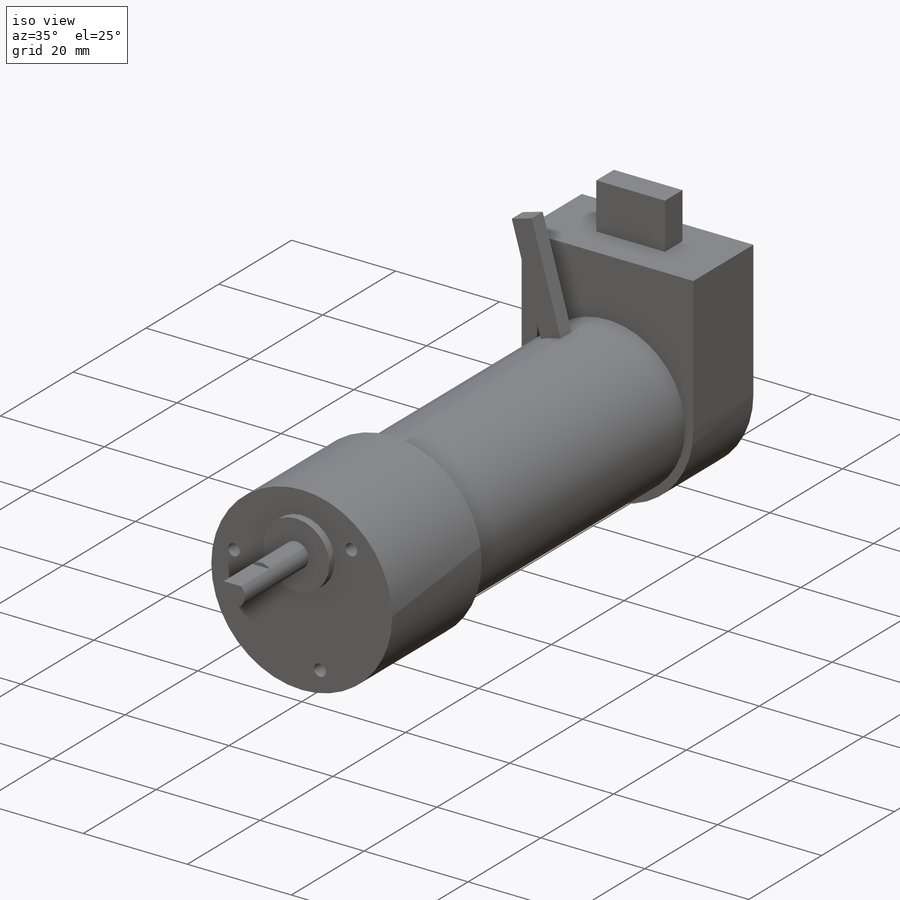
[diagram: iso view]
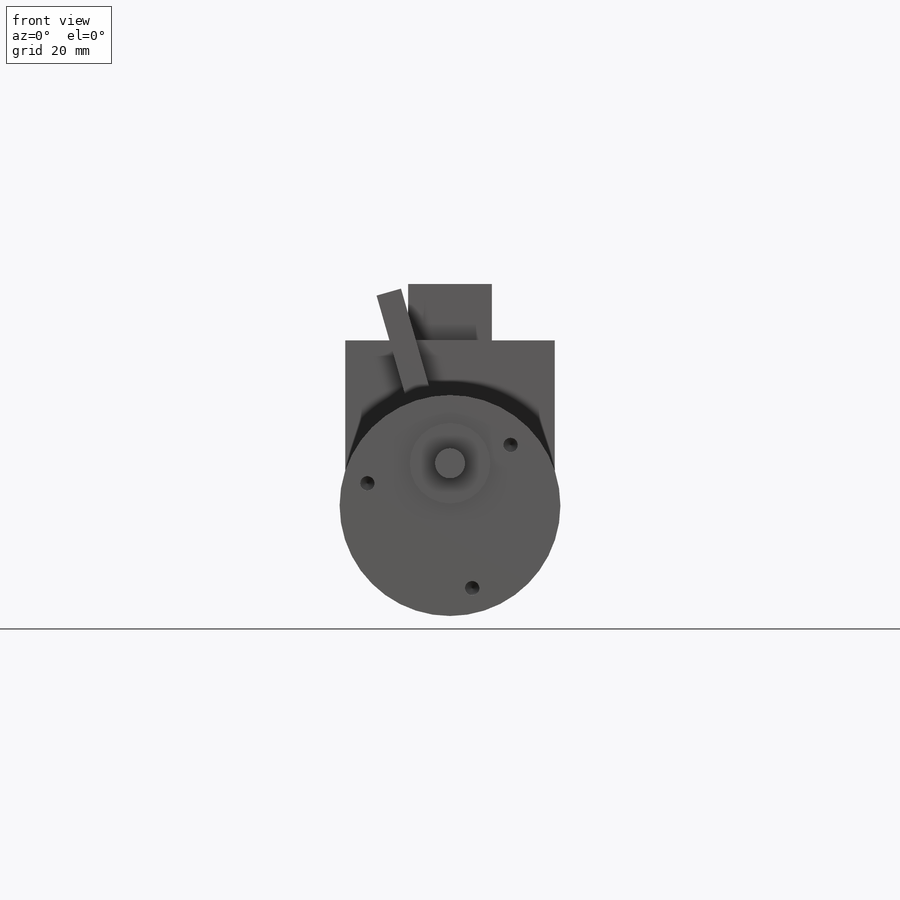
[diagram: front view]
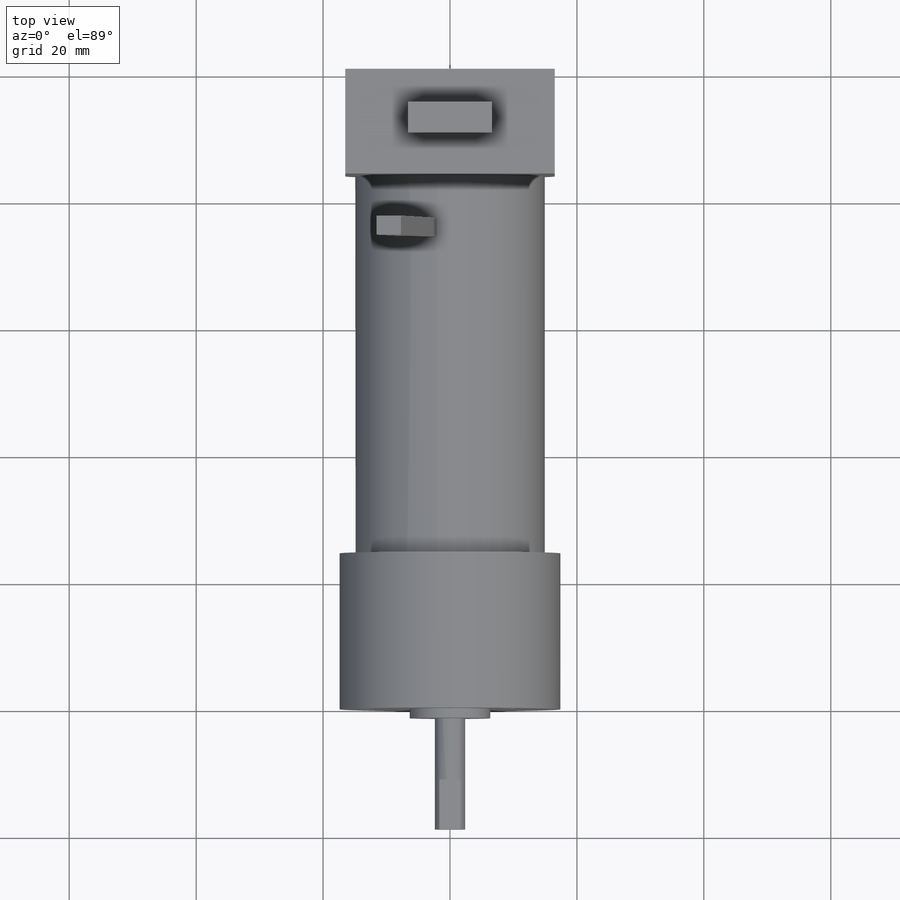
[diagram: top view]
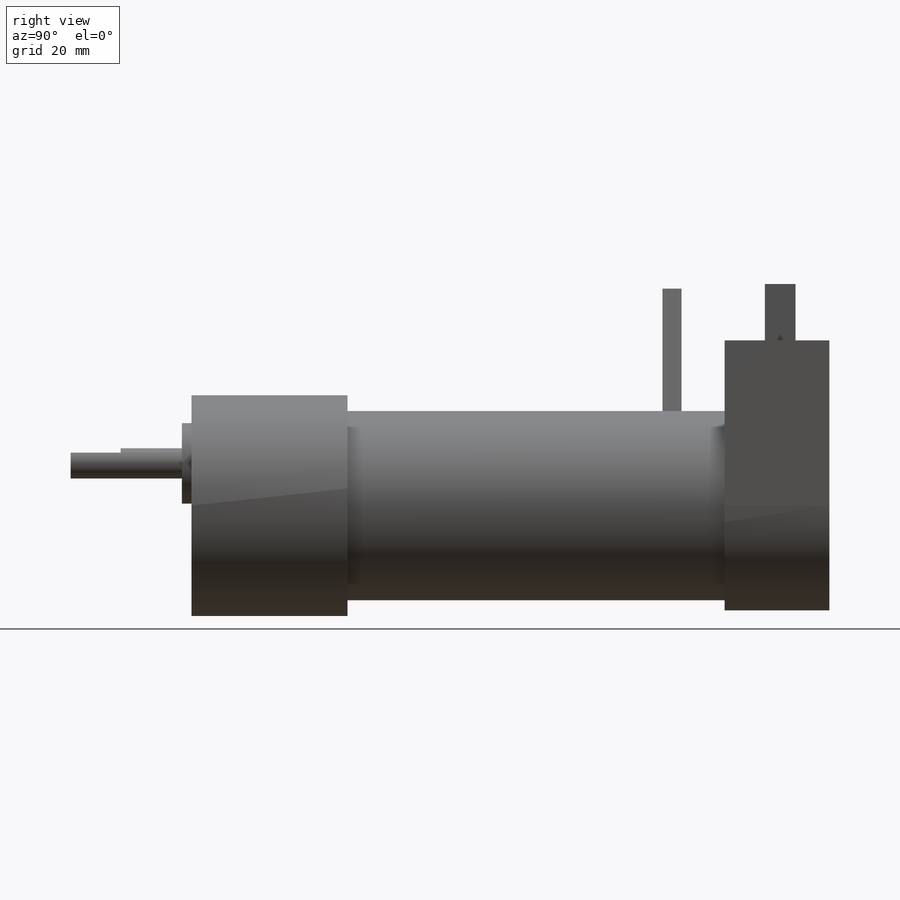
[diagram: right view]
SOLIDWORKS PART (.sldprt)
format: sldprt  version: not decoded by parser v0  size: 305,664 bytes
history: native  units: mm
features: sketch x8, extrude x3, revolve x2, material x1, plane x1, cut_extrude x1, hole x1, thread x1, pattern_circular x1 + 1 further entry (+11 scaffold rows collapsed)
feature tree (31):
  scaffold x11  (default folders/planes/origin — collapsed)
  material  "Material <not specified>"
  sketch  "Sketch1"  dims[D1=14.9225mm D2=17.399mm D3=24.5872mm D4=83.9978mm]
  revolve  "Revolve1"  Angle=360deg
  sketch  "Sketch3"  dims[D1=33.02mm D2=26.035mm]
  extrude  "Boss-Extrude1"  Depth=16.51mm
  sketch  "Sketch4"  dims[D1=8.89mm D2=4.826mm D3=6.35mm]
  extrude  "Boss-Extrude2"  Depth=13.208mm
  plane  "Plane1"  Offset=6.6548mm
  "Axis2"
  sketch  "Sketch5"  dims[D1=1.524mm D2=19.05mm D3=6.35mm D4=2.3749mm]
  revolve  "Revolve2"  Angle=360deg
  sketch  "Sketch6"  dims[D2=4.064mm D1=0.0mm]
  cut_extrude  "Cut-Extrude1"  Depth=7.874mm
  hole  "#4-40 Tapped Hole1"  Diameter=2.2606mm Depth=6.73mm
  sketch  "Sketch8"  dims[c1.D1=~14.218314mm c2.D1=15.0deg c2.D2=~13.49375mm]
  sketch  "Sketch7"  dims[hole-wizard template sketch: 47 standard entries collapsed; hole parameters kept: c15.Tap Drill Depth=6.73mm c15.D3=~14.816244mm c15.Drill Angle=118.0deg]
  thread  "Hole Thread1"  Diameter=4.826mm  [1 undecoded]
  pattern_circular  "CirPattern1"  Count=3 Angle=360deg
  sketch  "Sketch9"  dims[c1.D1=~50.143699mm c2.D1=16.0deg c2.D2=4.0mm c2.D3=35.0mm]
  extrude  "Boss-Extrude3"  Depth=3mm
decode coverage: 17 of 17 modeling features carry decoded parameters; 1 rows unclassified (native names shown)
note: ~ marks probable driven/reference dimensions
note: 1 parameter value undecoded
note: suppression state not decoded; provenance and decode notes live in map.json
